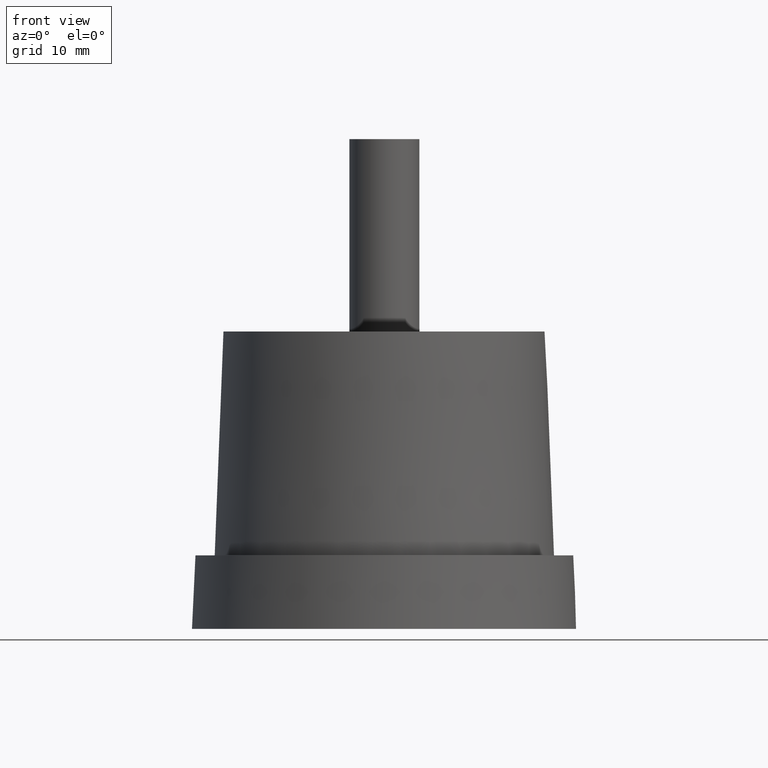
[diagram: clean part render]
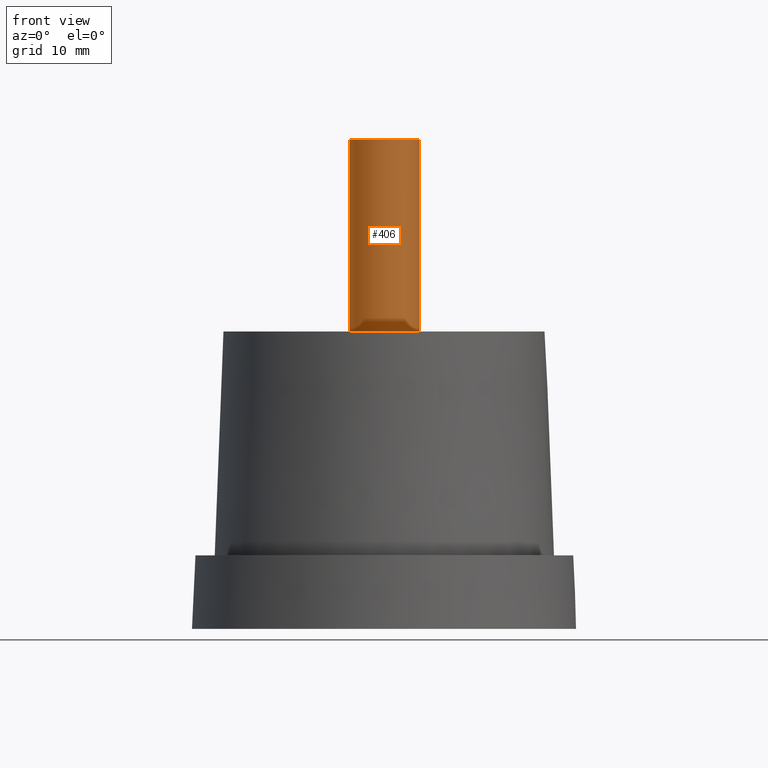
[diagram: same view with one face highlighted and labeled with its STEP entity id]
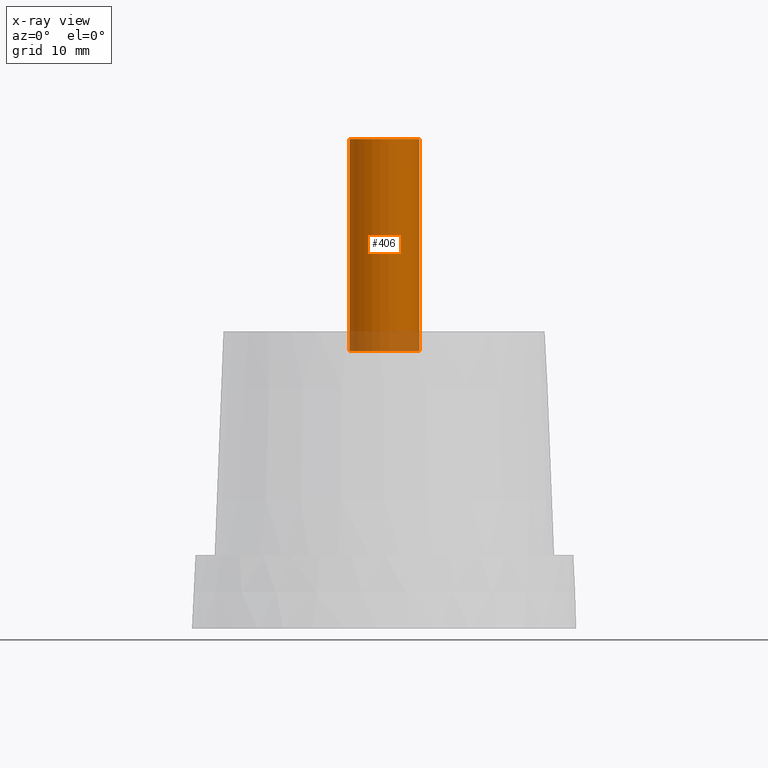
[diagram: x-ray of the same camera — body ghosted, the highlighted face saturated]
A machine part, front view. The second image highlights one B-rep face of the part: STEP entity #406.
The next image is the same camera in x-ray: the body ghosted, the highlighted face saturated — about 9% of this face is hidden behind the body in this view.
In plain terms, the highlighted cylindrical surface (bore or boss wall) has radius 5 mm, axis along (0, 0, 1).
Its self-contained STEP definition (entity closure, byte-faithful):
#65=FACE_BOUND('',#168,.T.);
#101=FACE_OUTER_BOUND('',#167,.T.);
#167=EDGE_LOOP('',(#347));
#168=EDGE_LOOP('',(#348));
#199=CIRCLE('',#452,5.);
#213=CIRCLE('',#479,5.);
#235=VERTEX_POINT('',#693);
#249=VERTEX_POINT('',#734);
#271=EDGE_CURVE('',#235,#235,#199,.T.);
#285=EDGE_CURVE('',#249,#249,#213,.T.);
#347=ORIENTED_EDGE('',*,*,#271,.T.);
#348=ORIENTED_EDGE('',*,*,#285,.F.);
#375=CYLINDRICAL_SURFACE('',#478,5.);
#406=ADVANCED_FACE('',(#101,#65),#375,.T.);
#452=AXIS2_PLACEMENT_3D('',#694,#564,#565);
#478=AXIS2_PLACEMENT_3D('',#733,#616,#617);
#479=AXIS2_PLACEMENT_3D('',#735,#618,#619);
#564=DIRECTION('center_axis',(0.,0.,1.));
#565=DIRECTION('ref_axis',(-1.,0.,0.));
#616=DIRECTION('center_axis',(0.,0.,1.));
#617=DIRECTION('ref_axis',(-1.,0.,0.));
#618=DIRECTION('center_axis',(0.,0.,1.));
#619=DIRECTION('ref_axis',(-1.,0.,0.));
#693=CARTESIAN_POINT('',(5.,6.12323399573677E-16,39.7));
#694=CARTESIAN_POINT('Origin',(0.,0.,39.7));
#733=CARTESIAN_POINT('Origin',(0.,0.,42.5));
#734=CARTESIAN_POINT('',(5.,6.12323399573677E-16,70.));
#735=CARTESIAN_POINT('Origin',(0.,0.,70.));